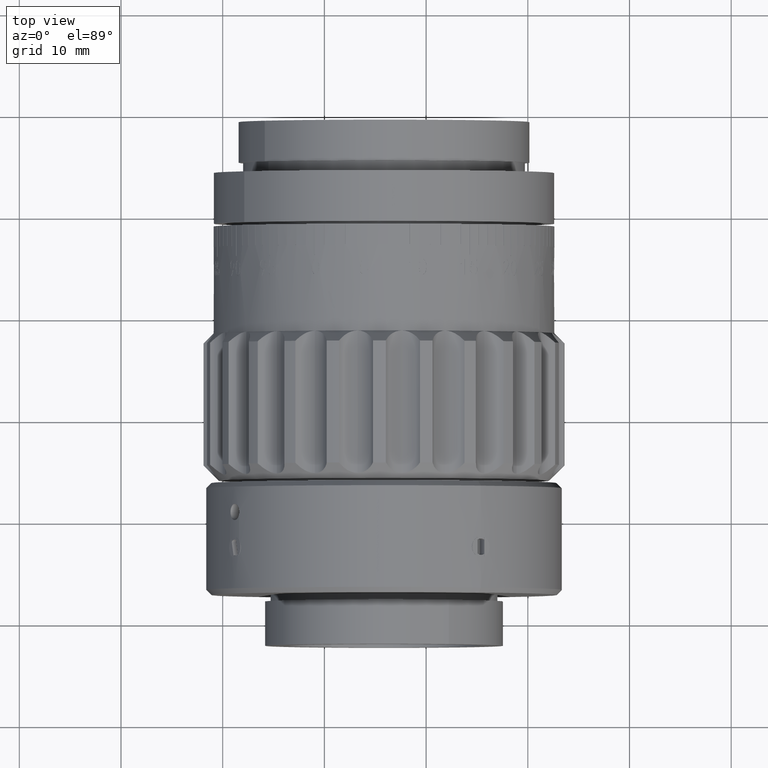
[diagram: clean part render]
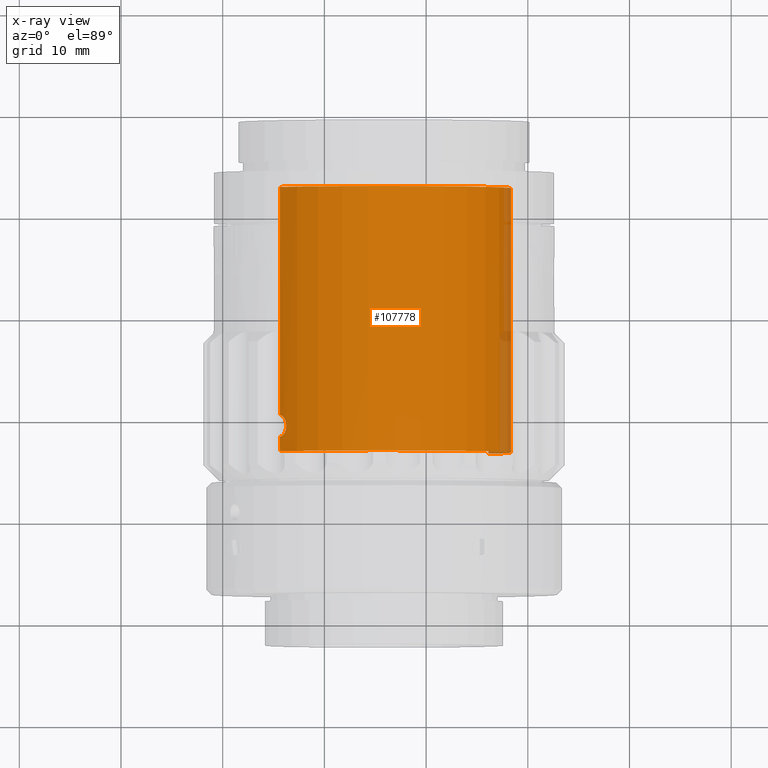
[diagram: x-ray — body ghosted, one internal face saturated and labeled with its STEP entity id]
A machine part, top view, then the same camera in x-ray: the body is ghosted and one INTERNAL B-rep face — a face not visible from any outside direction — is saturated and labeled: STEP entity #107778.
In plain terms, the highlighted cylindrical surface (partial cylindrical patch) has radius 12.5 mm, axis along (0, 1, 0).
Its self-contained STEP definition (entity closure, byte-faithful):
#17 = CARTESIAN_POINT ( 'NONE',  ( -1.050000000000002700, -6.487597981917915900, 12.45582193193207700 ) ) ;
#332 = ORIENTED_EDGE ( 'NONE', *, *, #34535, .T. ) ;
#629 = CARTESIAN_POINT ( 'NONE',  ( -1.050000000000002900, -6.626447637392183200, 12.45582193193207700 ) ) ;
#798 = CARTESIAN_POINT ( 'NONE',  ( 1.530808498934192100E-015, 27.76768902714551100, -12.50000000000000500 ) ) ;
#990 = CARTESIAN_POINT ( 'NONE',  ( -0.9171369349102610500, -7.017046862731105800, 12.46642126121385300 ) ) ;
#1249 = CARTESIAN_POINT ( 'NONE',  ( 1.530808498937029300E-015, -5.437597981917917000, -12.50000000000000500 ) ) ;
#1687 = CARTESIAN_POINT ( 'NONE',  ( 1.530808516228268600E-015, -7.537597981917914900, -12.50000000000000500 ) ) ;
#2002 = DIRECTION ( 'NONE',  ( -0.0000000000000000000, 1.000000000000000000, -0.0000000000000000000 ) ) ;
#3444 = VERTEX_POINT ( 'NONE', #75236 ) ;
#3652 = CARTESIAN_POINT ( 'NONE',  ( 0.0000000000000000000, -8.987597981917915000, 12.50000000000000500 ) ) ;
#4878 = B_SPLINE_CURVE_WITH_KNOTS ( 'NONE', 3,
 ( #17000, #99638, #99293, #9652, #100722, #68554, #60494, #60142, #85013, #1249 ),
 .UNSPECIFIED., .F., .F.,
 ( 4, 2, 2, 2, 4 ),
 ( 0.003284224515194792700, 0.003694861923150697200, 0.004105499331106602500, 0.004516136739062507000, 0.004926774147018411400 ),
 .UNSPECIFIED. ) ;
#5225 = ORIENTED_EDGE ( 'NONE', *, *, #22606, .F. ) ;
#7677 = CARTESIAN_POINT ( 'NONE',  ( -0.1385944883470414900, -5.437597981917915200, 12.50000000000000200 ) ) ;
#7971 = VERTEX_POINT ( 'NONE', #27871 ) ;
#8683 = AXIS2_PLACEMENT_3D ( 'NONE', #50461, #43520, #60319 ) ;
#8763 = CARTESIAN_POINT ( 'NONE',  ( -0.5290996848148790100, -5.570266654967901400, 12.48944504400679500 ) ) ;
#9652 = CARTESIAN_POINT ( 'NONE',  ( -0.9177322845503047600, -5.959402942043995600, -12.46637579168359100 ) ) ;
#9681 = CARTESIAN_POINT ( 'NONE',  ( 1.530808498934192100E-015, 27.76768902714551100, -12.50000000000000500 ) ) ;
#13485 = LINE ( 'NONE', #798, #69750 ) ;
#14851 = LINE ( 'NONE', #9681, #80259 ) ;
#15162 = CARTESIAN_POINT ( 'NONE',  ( 0.0000000000000000000, 27.76768902714551100, 12.50000000000000500 ) ) ;
#16714 = LINE ( 'NONE', #15162, #104338 ) ;
#17000 = CARTESIAN_POINT ( 'NONE',  ( -1.050000000007636800, -6.487597981918264100, -12.45582193193143400 ) ) ;
#17797 = CARTESIAN_POINT ( 'NONE',  ( -0.9174326558599162900, -7.016527241445221100, -12.46639916650345700 ) ) ;
#20362 = DIRECTION ( 'NONE',  ( -0.0000000000000000000, 1.000000000000000000, -0.0000000000000000000 ) ) ;
#22606 = EDGE_CURVE ( 'NONE', #3444, #40384, #88407, .T. ) ;
#23280 = AXIS2_PLACEMENT_3D ( 'NONE', #50951, #84610, #34510 ) ;
#24540 = CARTESIAN_POINT ( 'NONE',  ( -0.6454120743563914700, -5.648145775350878100, 12.48370340066957200 ) ) ;
#25137 = CARTESIAN_POINT ( 'NONE',  ( -0.1370708866889917000, -7.537597981917917500, 12.50000000000000400 ) ) ;
#25247 = CARTESIAN_POINT ( 'NONE',  ( -2.761013168273541300E-027, -5.437597981917917000, 12.50000000000000500 ) ) ;
#26235 = CARTESIAN_POINT ( 'NONE',  ( -1.729380319470763100E-023, -7.537597981917914900, 12.50000000000000500 ) ) ;
#26595 = CARTESIAN_POINT ( 'NONE',  ( -0.6452998354316826800, -7.327150930977336600, 12.48370973552468800 ) ) ;
#27685 = DIRECTION ( 'NONE',  ( 0.0000000000000000000, 0.0000000000000000000, 1.000000000000000000 ) ) ;
#27871 = CARTESIAN_POINT ( 'NONE',  ( -2.761013168273541300E-027, -5.437597981917917000, 12.50000000000000500 ) ) ;
#28421 = EDGE_CURVE ( 'NONE', #93590, #107667, #103998, .T. ) ;
#29436 = CARTESIAN_POINT ( 'NONE',  ( 1.530808498934192100E-015, 17.01240201808208500, -12.50000000000000500 ) ) ;
#33542 = CARTESIAN_POINT ( 'NONE',  ( -0.2746253417250998900, -7.510346130154980300, -12.49763012509005800 ) ) ;
#33733 = B_SPLINE_CURVE_WITH_KNOTS ( 'NONE', 3,
 ( #50727, #629, #41630, #990, #66835, #26595, #59161, #58800, #25137, #26235 ),
 .UNSPECIFIED., .F., .F.,
 ( 4, 2, 2, 2, 4 ),
 ( 0.0000000000000000000, 0.0004106225027895762200, 0.0008212450055791524400, 0.001231867508368728600, 0.001642490011158304500 ),
 .UNSPECIFIED. ) ;
#33895 = CARTESIAN_POINT ( 'NONE',  ( -0.5288780536065221800, -7.405051445289947400, -12.48945418448257700 ) ) ;
#34510 = DIRECTION ( 'NONE',  ( 0.0000000000000000000, 0.0000000000000000000, 1.000000000000000000 ) ) ;
#34535 = EDGE_CURVE ( 'NONE', #61834, #78729, #14851, .T. ) ;
#36990 = CARTESIAN_POINT ( 'NONE',  ( 1.530808516228268600E-015, -7.537597981917914900, -12.50000000000000500 ) ) ;
#38854 = CARTESIAN_POINT ( 'NONE',  ( 0.0000000000000000000, 27.76768902714551100, 12.50000000000000500 ) ) ;
#40384 = VERTEX_POINT ( 'NONE', #3652 ) ;
#41376 = CARTESIAN_POINT ( 'NONE',  ( -0.2747986865423283100, -5.464891317350949700, 12.49762656129602000 ) ) ;
#41630 = CARTESIAN_POINT ( 'NONE',  ( -1.022633232236899600, -6.762693505501341700, 12.45821096673780700 ) ) ;
#42246 = AXIS2_PLACEMENT_3D ( 'NONE', #69747, #20362, #27685 ) ;
#42305 = EDGE_CURVE ( 'NONE', #107667, #61834, #4878, .T. ) ;
#42324 = CARTESIAN_POINT ( 'NONE',  ( -0.1370078372759750400, -7.537597981917915700, -12.50000000000000900 ) ) ;
#43520 = DIRECTION ( 'NONE',  ( -0.0000000000000000000, 1.000000000000000000, -0.0000000000000000000 ) ) ;
#45268 = ORIENTED_EDGE ( 'NONE', *, *, #52098, .T. ) ;
#48562 = ORIENTED_EDGE ( 'NONE', *, *, #89619, .T. ) ;
#50461 = CARTESIAN_POINT ( 'NONE',  ( 0.0000000000000000000, 17.01240201808208500, 0.0000000000000000000 ) ) ;
#50727 = CARTESIAN_POINT ( 'NONE',  ( -1.050000000000002700, -6.487597981917915900, 12.45582193193207700 ) ) ;
#50951 = CARTESIAN_POINT ( 'NONE',  ( 0.0000000000000000000, -8.987597981917915000, 0.0000000000000000000 ) ) ;
#51432 = CARTESIAN_POINT ( 'NONE',  ( -1.050000000007636800, -6.487597981918264100, -12.45582193193143400 ) ) ;
#51525 = CARTESIAN_POINT ( 'NONE',  ( -1.050000000000002700, -6.487597981917915900, 12.45582193193207700 ) ) ;
#52098 = EDGE_CURVE ( 'NONE', #7971, #74503, #80097, .T. ) ;
#53579 = ORIENTED_EDGE ( 'NONE', *, *, #42305, .T. ) ;
#54443 = EDGE_LOOP ( 'NONE', ( #5225, #74474, #81403, #53579, #332, #48562, #71905, #45268, #81037, #85522 ) ) ;
#58800 = CARTESIAN_POINT ( 'NONE',  ( -0.2753443823053682800, -7.510046569234448000, 12.49760688486153300 ) ) ;
#58908 = CARTESIAN_POINT ( 'NONE',  ( -0.9358730139581751300, -5.938427049433402200, 12.46642575352697500 ) ) ;
#59161 = CARTESIAN_POINT ( 'NONE',  ( -0.5281356671720183200, -7.405360674357234900, 12.48947817542696200 ) ) ;
#60142 = CARTESIAN_POINT ( 'NONE',  ( -0.2751137334925253800, -5.464978624994585300, -12.49761929306847800 ) ) ;
#60319 = DIRECTION ( 'NONE',  ( 0.0000000000000000000, 0.0000000000000000000, 1.000000000000000000 ) ) ;
#60494 = CARTESIAN_POINT ( 'NONE',  ( -0.5293483634782445400, -5.570413035686574900, -12.48943416936558200 ) ) ;
#61834 = VERTEX_POINT ( 'NONE', #65529 ) ;
#65529 = CARTESIAN_POINT ( 'NONE',  ( 1.530808498937029300E-015, -5.437597981917917000, -12.50000000000000500 ) ) ;
#66835 = CARTESIAN_POINT ( 'NONE',  ( -0.8390773048706737800, -7.133516172042245500, 12.47218384706114200 ) ) ;
#67536 = CARTESIAN_POINT ( 'NONE',  ( -0.8404819944526504800, -7.132039982204717400, -12.47209812927983700 ) ) ;
#67736 = DIRECTION ( 'NONE',  ( -0.0000000000000000000, 1.000000000000000000, -0.0000000000000000000 ) ) ;
#68554 = CARTESIAN_POINT ( 'NONE',  ( -0.6458746811666403700, -5.648489687239368200, -12.48367941845600400 ) ) ;
#69747 = CARTESIAN_POINT ( 'NONE',  ( 0.0000000000000000000, 27.76768902714551100, 0.0000000000000000000 ) ) ;
#69750 = VECTOR ( 'NONE', #67736, 1000.000000000000000 ) ;
#69909 = VERTEX_POINT ( 'NONE', #80416 ) ;
#71905 = ORIENTED_EDGE ( 'NONE', *, *, #96484, .F. ) ;
#72490 = EDGE_CURVE ( 'NONE', #3444, #93590, #13485, .T. ) ;
#74474 = ORIENTED_EDGE ( 'NONE', *, *, #72490, .T. ) ;
#74503 = VERTEX_POINT ( 'NONE', #51525 ) ;
#75236 = CARTESIAN_POINT ( 'NONE',  ( 1.530808498934192100E-015, -8.987597981917915000, -12.50000000000000500 ) ) ;
#76797 = EDGE_CURVE ( 'NONE', #74503, #106281, #33733, .T. ) ;
#78297 = CARTESIAN_POINT ( 'NONE',  ( -1.050000000007636800, -6.487597981918264100, -12.45582193193143400 ) ) ;
#78729 = VERTEX_POINT ( 'NONE', #29436 ) ;
#80097 = B_SPLINE_CURVE_WITH_KNOTS ( 'NONE', 3,
 ( #25247, #7677, #41376, #8763, #24540, #58908, #107924, #17 ),
 .UNSPECIFIED., .F., .F.,
 ( 4, 2, 2, 4 ),
 ( 0.004926774147018410600, 0.005337002409975855800, 0.005747230672933301800, 0.006567687198848193100 ),
 .UNSPECIFIED. ) ;
#80259 = VECTOR ( 'NONE', #2002, 1000.000000000000000 ) ;
#80416 = CARTESIAN_POINT ( 'NONE',  ( 0.0000000000000000000, 17.01240201808208500, 12.50000000000000500 ) ) ;
#81037 = ORIENTED_EDGE ( 'NONE', *, *, #76797, .T. ) ;
#81403 = ORIENTED_EDGE ( 'NONE', *, *, #28421, .T. ) ;
#81835 = LINE ( 'NONE', #38854, #101465 ) ;
#83345 = CARTESIAN_POINT ( 'NONE',  ( -1.729380319470763100E-023, -7.537597981917914900, 12.50000000000000500 ) ) ;
#84610 = DIRECTION ( 'NONE',  ( -0.0000000000000000000, 1.000000000000000000, -0.0000000000000000000 ) ) ;
#85013 = CARTESIAN_POINT ( 'NONE',  ( -0.1387327168574608000, -5.437597981917917900, -12.50000000000000500 ) ) ;
#85522 = ORIENTED_EDGE ( 'NONE', *, *, #89458, .F. ) ;
#88369 = CIRCLE ( 'NONE', #8683, 12.50000000000000500 ) ;
#88407 = CIRCLE ( 'NONE', #23280, 12.50000000000000500 ) ;
#89458 = EDGE_CURVE ( 'NONE', #40384, #106281, #81835, .T. ) ;
#89619 = EDGE_CURVE ( 'NONE', #78729, #69909, #88369, .T. ) ;
#93590 = VERTEX_POINT ( 'NONE', #36990 ) ;
#94528 = CYLINDRICAL_SURFACE ( 'NONE', #42246, 12.50000000000000500 ) ;
#96484 = EDGE_CURVE ( 'NONE', #7971, #69909, #16714, .T. ) ;
#99293 = CARTESIAN_POINT ( 'NONE',  ( -1.022447420755324500, -6.212236731840650200, -12.45822456040071200 ) ) ;
#99638 = CARTESIAN_POINT ( 'NONE',  ( -1.050000000000099300, -6.350474775262775000, -12.45582193193207000 ) ) ;
#100442 = CARTESIAN_POINT ( 'NONE',  ( -1.049999999999888800, -6.624653140137149300, -12.45582193193208600 ) ) ;
#100722 = CARTESIAN_POINT ( 'NONE',  ( -0.8395003230157545000, -5.842232936670739300, -12.47215479114216800 ) ) ;
#101465 = VECTOR ( 'NONE', #106075, 1000.000000000000000 ) ;
#101527 = CARTESIAN_POINT ( 'NONE',  ( -0.6444441075216891200, -7.328078360637924500, -12.48376279499355200 ) ) ;
#101890 = CARTESIAN_POINT ( 'NONE',  ( -1.022771105377325200, -6.762166927043772100, -12.45819931300834000 ) ) ;
#103998 = B_SPLINE_CURVE_WITH_KNOTS ( 'NONE', 3,
 ( #1687, #42324, #33542, #33895, #101527, #67536, #17797, #101890, #100442, #51432 ),
 .UNSPECIFIED., .F., .F.,
 ( 4, 2, 2, 2, 4 ),
 ( 0.001642490011158302900, 0.002052923637167425500, 0.002463357263176547600, 0.002873790889185670200, 0.003284224515194792700 ),
 .UNSPECIFIED. ) ;
#104338 = VECTOR ( 'NONE', #105834, 1000.000000000000000 ) ;
#105834 = DIRECTION ( 'NONE',  ( -0.0000000000000000000, 1.000000000000000000, -0.0000000000000000000 ) ) ;
#106075 = DIRECTION ( 'NONE',  ( -0.0000000000000000000, 1.000000000000000000, -0.0000000000000000000 ) ) ;
#106281 = VERTEX_POINT ( 'NONE', #83345 ) ;
#107608 = FACE_OUTER_BOUND ( 'NONE', #54443, .T. ) ;
#107667 = VERTEX_POINT ( 'NONE', #78297 ) ;
#107778 = ADVANCED_FACE ( 'NONE', ( #107608 ), #94528, .F. ) ;
#107924 = CARTESIAN_POINT ( 'NONE',  ( -1.050000000000002700, -6.210165290867191600, 12.45582193193207700 ) ) ;